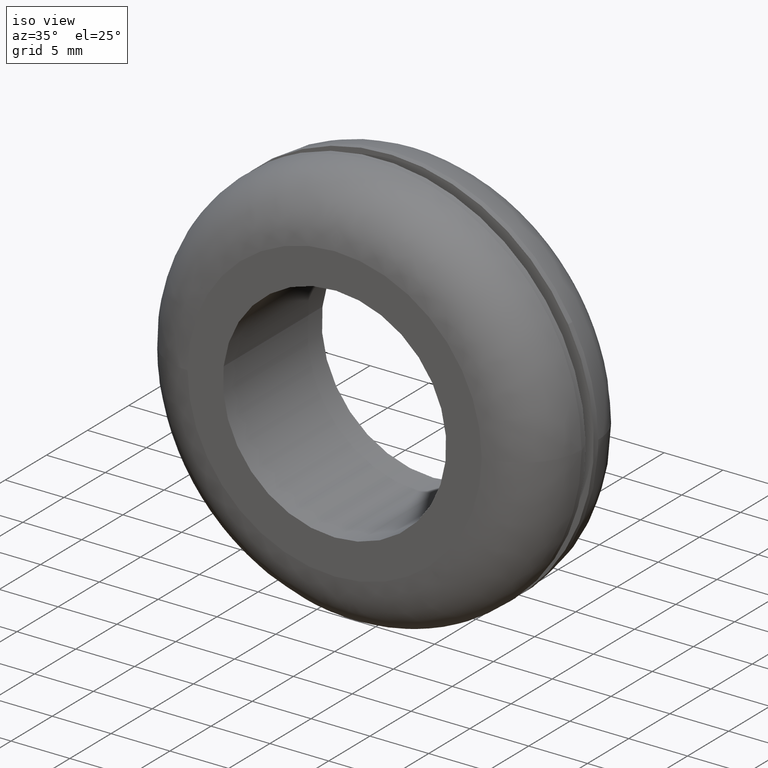
[diagram: clean part render]
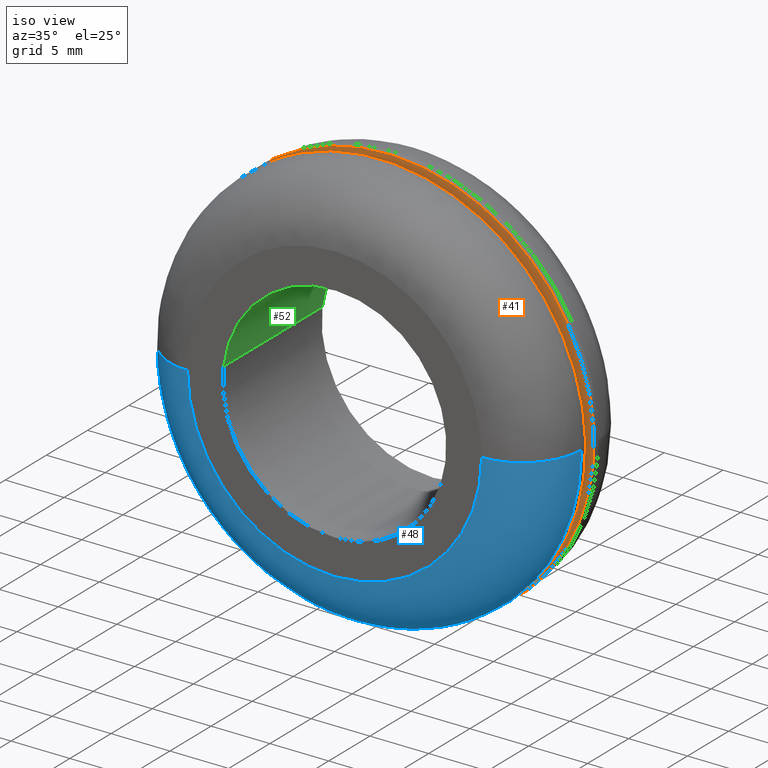
[diagram: same view with three faces highlighted in distinct colors, each labeled with its STEP entity id]
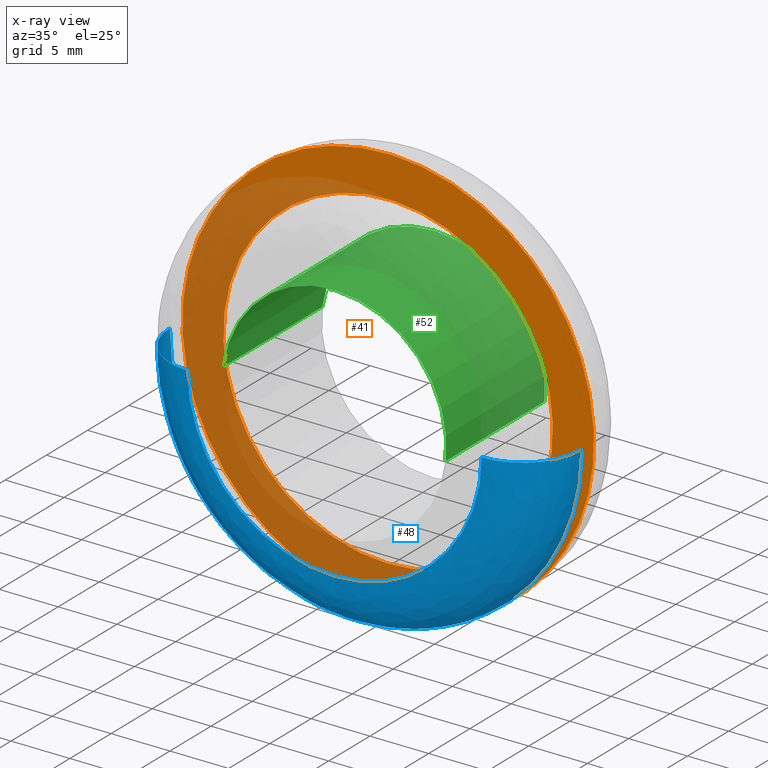
[diagram: x-ray of the same camera — body ghosted, the three highlighted faces saturated]
A machine part, iso view with three faces highlighted in distinct colors.
The next image is the same camera in x-ray (body ghosted, the three faces saturated) — at least one of them is partly hidden behind the body in this view.
Their STEP definitions:

[orange] entity #41 — the highlighted planar face has unit normal (0, 1, 0).
#41=ADVANCED_FACE('',(#68,#69),#67,.F.);
#67=PLANE('',#229);
#68=FACE_OUTER_BOUND('',#230,.T.);
#69=FACE_BOUND('',#231,.T.);
#226=CARTESIAN_POINT('',(-3.63730693493E+001,6.50000000000E+000,-2.27500034972E+001));
#227=DIRECTION('',(0.00000000000E+000,1.00000000000E+000,0.00000000000E+000));
#228=DIRECTION('',(0.00000000000E+000,0.00000000000E+000,1.00000000000E+000));
#229=AXIS2_PLACEMENT_3D('',#226,#227,#228);
#230=EDGE_LOOP('',(#394,#395,#396));
#231=EDGE_LOOP('',(#397,#398,#399));
#394=ORIENTED_EDGE('',*,*,#498,.T.);
#395=ORIENTED_EDGE('',*,*,#499,.T.);
#396=ORIENTED_EDGE('',*,*,#500,.T.);
#397=ORIENTED_EDGE('',*,*,#501,.F.);
#398=ORIENTED_EDGE('',*,*,#502,.F.);
#399=ORIENTED_EDGE('',*,*,#503,.F.);
#498=EDGE_CURVE('',#586,#587,#588,.T.);
#499=EDGE_CURVE('',#587,#594,#595,.T.);
#500=EDGE_CURVE('',#594,#586,#601,.T.);
#501=EDGE_CURVE('',#607,#608,#609,.T.);
#502=EDGE_CURVE('',#615,#607,#616,.T.);
#503=EDGE_CURVE('',#608,#615,#622,.T.);
#586=VERTEX_POINT('',#926);
#587=VERTEX_POINT('',#927);
#588=CIRCLE('',#931,1.75000011500E+001);
#594=VERTEX_POINT('',#932);
#595=CIRCLE('',#936,1.75000011500E+001);
#601=CIRCLE('',#940,1.75000011500E+001);
#607=VERTEX_POINT('',#941);
#608=VERTEX_POINT('',#942);
#609=CIRCLE('',#946,1.40000000000E+001);
#615=VERTEX_POINT('',#947);
#616=CIRCLE('',#951,1.40000000000E+001);
#622=CIRCLE('',#955,1.40000000000E+001);
#926=CARTESIAN_POINT('',(-5.98127582907E-014,6.50000000000E+000,-1.75000023001E+001));
#927=CARTESIAN_POINT('',(1.53110666170E+001,6.50000000000E+000,8.47474327068E+000));
#928=CARTESIAN_POINT('',(4.47224532962E-007,6.50000000000E+000,-1.15003596868E-006));
#929=DIRECTION('',(5.38317414406E-017,-1.00000000000E+000,4.06024395128E-016));
#930=DIRECTION('',(-2.55556887697E-008,-4.06024396503E-016,-1.00000000000E+000));
#931=AXIS2_PLACEMENT_3D('',#928,#929,#930);
#932=CARTESIAN_POINT('',(-1.53115626522E+001,6.50000000000E+000,-8.47384772078E+000));
#933=CARTESIAN_POINT('',(4.47224532962E-007,6.50000000000E+000,-1.15003596868E-006));
#934=DIRECTION('',(5.38317414406E-017,-1.00000000000E+000,4.06024395128E-016));
#935=DIRECTION('',(-2.55556887697E-008,-4.06024396503E-016,-1.00000000000E+000));
#936=AXIS2_PLACEMENT_3D('',#933,#934,#935);
#937=CARTESIAN_POINT('',(4.47224532962E-007,6.50000000000E+000,-1.15003596868E-006));
#938=DIRECTION('',(5.38317414406E-017,-1.00000000000E+000,4.06024395128E-016));
#939=DIRECTION('',(-2.55556887697E-008,-4.06024396503E-016,-1.00000000000E+000));
#940=AXIS2_PLACEMENT_3D('',#937,#938,#939);
#941=CARTESIAN_POINT('',(-1.39021333789E+001,6.50000000000E+000,1.65247920289E+000));
#942=CARTESIAN_POINT('',(-8.43769498715E-015,6.50000000000E+000,-1.40000000000E+001));
#943=CARTESIAN_POINT('',(4.71356287335E-012,6.50000000000E+000,1.03739239421E-011));
#944=DIRECTION('',(2.18657232574E-016,-1.00000000000E+000,7.64582107424E-016));
#945=DIRECTION('',(-3.36911054610E-013,-7.64582107424E-016,-1.00000000000E+000));
#946=AXIS2_PLACEMENT_3D('',#943,#944,#945);
#947=CARTESIAN_POINT('',(1.39018475546E+001,6.50000000000E+000,-1.65488204044E+000));
#948=CARTESIAN_POINT('',(4.71356287335E-012,6.50000000000E+000,1.03739239421E-011));
#949=DIRECTION('',(2.18657232574E-016,-1.00000000000E+000,7.64582107424E-016));
#950=DIRECTION('',(-3.36911054610E-013,-7.64582107424E-016,-1.00000000000E+000));
#951=AXIS2_PLACEMENT_3D('',#948,#949,#950);
#952=CARTESIAN_POINT('',(4.71356287335E-012,6.50000000000E+000,1.03739239421E-011));
#953=DIRECTION('',(2.18657232574E-016,-1.00000000000E+000,7.64582107424E-016));
#954=DIRECTION('',(-3.36911054610E-013,-7.64582107424E-016,-1.00000000000E+000));
#955=AXIS2_PLACEMENT_3D('',#952,#953,#954);

[blue] entity #48 — the highlighted face is a freeform B-spline surface patch.
#48=ADVANCED_FACE('',(#141),#140,.T.);
#140=( BOUNDED_SURFACE() B_SPLINE_SURFACE( 2,2,((#264,#265,#266,#267,#268),(#269,#270,#271,#272,#273),(#274,#275,#276,#277,#278),(#279,#280,#281,#282,#283),(#284,#285,#286,#287,#288)), .UNSPECIFIED.,.F.,.F.,.F.) B_SPLINE_SURFACE_WITH_KNOTS((3,2,3),(3,2,3),(0.00000000000E+000,5.00000000000E-001,1.00000000000E+000),(0.00000000000E+000,5.00000000000E-001,1.00000000000E+000), .UNSPECIFIED. ) GEOMETRIC_REPRESENTATION_ITEM() RATIONAL_B_SPLINE_SURFACE(((1.00000000000E+000,7.07106781015E-001,1.00000000000E+000,7.07106781015E-001,1.00000000000E+000),(7.07106781187E-001,4.99999999878E-001,7.07106781187E-001,4.99999999878E-001,7.07106781187E-001),(1.00000000000E+000,7.07106781015E-001,1.00000000000E+000,7.07106781015E-001,1.00000000000E+000),(7.07106781187E-001,4.99999999878E-001,7.07106781187E-001,4.99999999878E-001,7.07106781187E-001),(1.00000000000E+000,7.07106781015E-001,1.00000000000E+000,7.07106781015E-001,1.00000000000E+000))) REPRESENTATION_ITEM('') SURFACE() );
#141=FACE_OUTER_BOUND('',#289,.T.);
#264=CARTESIAN_POINT('',(-1.75000000000E+001,5.00000000000E+000,-2.23753985175E-013));
#265=CARTESIAN_POINT('',(-1.75000000000E+001,-2.43019099225E-009,-2.13188913351E-013));
#266=CARTESIAN_POINT('',(-1.24999999976E+001,0.00000000000E+000,-2.12576610179E-013));
#267=CARTESIAN_POINT('',(-7.49999999514E+000,2.43019350440E-009,-2.11964307007E-013));
#268=CARTESIAN_POINT('',(-7.50000000000E+000,5.00000000486E+000,-2.22529378832E-013));
#269=CARTESIAN_POINT('',(-1.75000000000E+001,5.00000000000E+000,-1.75000000000E+001));
#270=CARTESIAN_POINT('',(-1.75000000000E+001,-2.43022774855E-009,-1.75000000000E+001));
#271=CARTESIAN_POINT('',(-1.24999999976E+001,-2.66632960471E-014,-1.24999999976E+001));
#272=CARTESIAN_POINT('',(-7.49999999514E+000,2.43017728133E-009,-7.49999999514E+000));
#273=CARTESIAN_POINT('',(-7.50000000000E+000,5.00000000486E+000,-7.50000000000E+000));
#274=CARTESIAN_POINT('',(3.61623521911E-012,5.00000000000E+000,-1.75000000000E+001));
#275=CARTESIAN_POINT('',(3.46509697276E-012,-2.43075685357E-009,-1.75000000000E+001));
#276=CARTESIAN_POINT('',(3.46479083136E-012,-4.04121180964E-013,-1.24999999976E+001));
#277=CARTESIAN_POINT('',(3.46448468996E-012,2.42995108212E-009,-7.49999999514E+000));
#278=CARTESIAN_POINT('',(3.61562293630E-012,5.00000000486E+000,-7.50000000000E+000));
#279=CARTESIAN_POINT('',(1.75000000000E+001,5.00000000000E+000,-1.75000000000E+001));
#280=CARTESIAN_POINT('',(1.75000000000E+001,-2.43128582919E-009,-1.75000000000E+001));
#281=CARTESIAN_POINT('',(1.24999999976E+001,-7.81931645729E-013,-1.24999999976E+001));
#282=CARTESIAN_POINT('',(7.49999999515E+000,2.42972431034E-009,-7.49999999514E+000));
#283=CARTESIAN_POINT('',(7.50000000001E+000,5.00000000486E+000,-7.50000000000E+000));
#284=CARTESIAN_POINT('',(1.75000000000E+001,5.00000000000E+000,-2.21610994835E-013));
#285=CARTESIAN_POINT('',(1.75000000000E+001,-2.43124923457E-009,-2.11045923011E-013));
#286=CARTESIAN_POINT('',(1.24999999976E+001,-7.55839835165E-013,-2.11045902794E-013));
#287=CARTESIAN_POINT('',(7.49999999515E+000,2.42974006170E-009,-2.11045882576E-013));
#288=CARTESIAN_POINT('',(7.50000000001E+000,5.00000000486E+000,-2.21610954400E-013));
#289=EDGE_LOOP('',(#437,#438,#439,#440,#441,#442,#443));
#437=ORIENTED_EDGE('',*,*,#511,.F.);
#438=ORIENTED_EDGE('',*,*,#528,.F.);
#439=ORIENTED_EDGE('',*,*,#525,.T.);
#440=ORIENTED_EDGE('',*,*,#524,.T.);
#441=ORIENTED_EDGE('',*,*,#522,.T.);
#442=ORIENTED_EDGE('',*,*,#521,.T.);
#443=ORIENTED_EDGE('',*,*,#529,.T.);
#511=EDGE_CURVE('',#671,#678,#679,.T.);
#521=EDGE_CURVE('',#745,#738,#746,.T.);
#522=EDGE_CURVE('',#752,#745,#753,.T.);
#524=EDGE_CURVE('',#765,#752,#766,.T.);
#525=EDGE_CURVE('',#772,#765,#773,.T.);
#528=EDGE_CURVE('',#772,#671,#792,.T.);
#529=EDGE_CURVE('',#738,#678,#798,.T.);
#671=VERTEX_POINT('',#987);
#678=VERTEX_POINT('',#992);
#679=CIRCLE('',#996,1.25000000001E+001);
#738=VERTEX_POINT('',#1028);
#745=VERTEX_POINT('',#1033);
#746=CIRCLE('',#1037,1.75000000000E+001);
#752=VERTEX_POINT('',#1038);
#753=CIRCLE('',#1042,1.75000000000E+001);
#765=VERTEX_POINT('',#1045);
#766=CIRCLE('',#1049,1.75000000000E+001);
#772=VERTEX_POINT('',#1050);
#773=CIRCLE('',#1054,1.75000000000E+001);
#792=(BOUNDED_CURVE() B_SPLINE_CURVE(2,(#1064,#1065,#1066),.UNSPECIFIED.,.F.,.F.) B_SPLINE_CURVE_WITH_KNOTS((3,3),(0.00000000000E+000,5.00000000000E-001),.UNSPECIFIED.) CURVE() GEOMETRIC_REPRESENTATION_ITEM() RATIONAL_B_SPLINE_CURVE((1.00000000000E+000,7.07106781015E-001,1.00000000000E+000)) REPRESENTATION_ITEM('') );
#798=(BOUNDED_CURVE() B_SPLINE_CURVE(3,(#1067,#1068,#1069,#1070,#1071),.UNSPECIFIED.,.F.,.F.) B_SPLINE_CURVE_WITH_KNOTS((4,1,4),(0.00000000000E+000,2.50000046000E-001,5.00000079937E-001),.UNSPECIFIED.) CURVE() GEOMETRIC_REPRESENTATION_ITEM() RATIONAL_B_SPLINE_CURVE((1.00000000000E+000,1.00000000000E+000,1.00000000000E+000,1.00000000000E+000,1.00000000000E+000)) REPRESENTATION_ITEM('') );
#987=CARTESIAN_POINT('',(-1.25000000001E+001,-3.60684523020E-016,-2.12694981762E-013));
#992=CARTESIAN_POINT('',(1.24999999327E+001,-3.60923622817E-016,-1.29728360748E-003));
#993=CARTESIAN_POINT('',(-1.26263444145E-011,-3.60684523008E-016,6.66604549338E-011));
#994=DIRECTION('',(-5.93530804006E-032,-1.00000000000E+000,1.84308038158E-016));
#995=DIRECTION('',(1.00961017325E-012,1.84308038158E-016,1.00000000000E+000));
#996=AXIS2_PLACEMENT_3D('',#993,#994,#995);
#1028=CARTESIAN_POINT('',(1.75000000000E+001,5.00000000003E+000,2.30736714655E-005));
#1033=CARTESIAN_POINT('',(1.74986182736E+001,4.99999999997E+000,-2.19905697968E-001));
#1034=CARTESIAN_POINT('',(1.06581410364E-014,4.99999999995E+000,1.95399252334E-014));
#1035=DIRECTION('',(4.73257067388E-012,-1.00000000000E+000,2.80662169181E-010));
#1036=DIRECTION('',(-9.99921044204E-001,-1.20538499816E-012,1.25660398839E-002));
#1037=AXIS2_PLACEMENT_3D('',#1034,#1035,#1036);
#1038=CARTESIAN_POINT('',(9.49807078876E+000,4.99999999999E+000,-1.46981853061E+001));
#1039=CARTESIAN_POINT('',(-1.30668809106E-011,4.99999999997E+000,8.35065350202E-012));
#1040=DIRECTION('',(5.38332154837E-014,-1.00000000000E+000,-1.78738785599E-012));
#1041=DIRECTION('',(-5.42728706712E-001,-1.53045829977E-012,8.39908060987E-001));
#1042=AXIS2_PLACEMENT_3D('',#1039,#1040,#1041);
#1045=CARTESIAN_POINT('',(-1.35034316115E+001,5.00000000000E+000,-1.11313671538E+001));
#1046=CARTESIAN_POINT('',(-1.30668809106E-011,4.99999999997E+000,8.35065350202E-012));
#1047=DIRECTION('',(5.38332154837E-014,-1.00000000000E+000,-1.78738785599E-012));
#1048=DIRECTION('',(-5.42728706712E-001,-1.53045829977E-012,8.39908060987E-001));
#1049=AXIS2_PLACEMENT_3D('',#1046,#1047,#1048);
#1050=CARTESIAN_POINT('',(-1.75000000000E+001,5.00000000003E+000,-2.23831812019E-013));
#1051=CARTESIAN_POINT('',(-6.02184968557E-013,4.99999999977E+000,1.77635683940E-015));
#1052=DIRECTION('',(-1.48615580498E-011,-1.00000000000E+000,-5.00986693622E-011));
#1053=DIRECTION('',(9.97565673840E-001,-1.13318370560E-011,-6.97332515755E-002));
#1054=AXIS2_PLACEMENT_3D('',#1051,#1052,#1053);
#1064=CARTESIAN_POINT('',(-1.75000000000E+001,5.00000000000E+000,-2.23753985175E-013));
#1065=CARTESIAN_POINT('',(-1.75000000000E+001,-2.43019099225E-009,-2.13188913351E-013));
#1066=CARTESIAN_POINT('',(-1.24999999976E+001,0.00000000000E+000,-2.12576610179E-013));
#1067=CARTESIAN_POINT('',(1.75000000000E+001,5.00000000000E+000,-2.18491891246E-013));
#1068=CARTESIAN_POINT('',(1.75092210951E+001,3.70943789612E+000,-2.15912964819E-013));
#1069=CARTESIAN_POINT('',(1.64211759624E+001,1.07882308398E+000,-2.10900124590E-013));
#1070=CARTESIAN_POINT('',(1.37905609069E+001,-9.22138485387E-003,-2.09307299433E-013));
#1071=CARTESIAN_POINT('',(1.24999988671E+001,-6.27197189396E-013,-2.09610106989E-013));

[green] entity #52 — the highlighted cylindrical surface (partial cylindrical patch) has radius 9.5 mm, axis along (0, 1, 0).
#52=ADVANCED_FACE('',(#181),#180,.F.);
#180=CYLINDRICAL_SURFACE('',#371,9.50000000000E+000);
#181=FACE_OUTER_BOUND('',#372,.T.);
#368=CARTESIAN_POINT('',(-3.05309655699E-013,1.20000000000E+001,-2.65371185567E-012));
#369=DIRECTION('',(1.01856202592E-015,1.00000000000E+000,6.98494135263E-015));
#370=DIRECTION('',(-9.93009615725E-001,1.86984930463E-016,1.18033482869E-001));
#371=AXIS2_PLACEMENT_3D('',#368,#369,#370);
#372=EDGE_LOOP('',(#467,#468,#469,#470));
#467=ORIENTED_EDGE('',*,*,#514,.T.);
#468=ORIENTED_EDGE('',*,*,#540,.T.);
#469=ORIENTED_EDGE('',*,*,#508,.F.);
#470=ORIENTED_EDGE('',*,*,#541,.F.);
#508=EDGE_CURVE('',#650,#657,#658,.T.);
#514=EDGE_CURVE('',#699,#691,#700,.T.);
#540=EDGE_CURVE('',#691,#657,#872,.T.);
#541=EDGE_CURVE('',#699,#650,#878,.T.);
#650=VERTEX_POINT('',#972);
#657=VERTEX_POINT('',#977);
#658=CIRCLE('',#981,9.49999999998E+000);
#691=VERTEX_POINT('',#1001);
#699=VERTEX_POINT('',#1007);
#700=CIRCLE('',#1011,9.49999999998E+000);
#872=(BOUNDED_CURVE() B_SPLINE_CURVE(1,(#1122,#1123),.UNSPECIFIED.,.F.,.F.) B_SPLINE_CURVE_WITH_KNOTS((2,2),(8.33333343261E-002,9.16666667006E-001),.UNSPECIFIED.) CURVE() GEOMETRIC_REPRESENTATION_ITEM() RATIONAL_B_SPLINE_CURVE((1.00000000000E+000,1.00000000000E+000)) REPRESENTATION_ITEM('') );
#878=(BOUNDED_CURVE() B_SPLINE_CURVE(1,(#1124,#1125),.UNSPECIFIED.,.F.,.F.) B_SPLINE_CURVE_WITH_KNOTS((2,2),(8.33333333333E-002,9.16666666667E-001),.UNSPECIFIED.) CURVE() GEOMETRIC_REPRESENTATION_ITEM() RATIONAL_B_SPLINE_CURVE((7.50000000000E-001,7.50000000000E-001)) REPRESENTATION_ITEM('') );
#972=CARTESIAN_POINT('',(9.43339740405E+000,1.20000000000E+001,-1.12294853716E+000));
#977=CARTESIAN_POINT('',(-9.43359175943E+000,1.20000000000E+001,1.12131463734E+000));
#978=CARTESIAN_POINT('',(7.51754214434E-012,1.20000000000E+001,1.65361058180E-011));
#979=DIRECTION('',(4.58784378545E-016,-1.00000000000E+000,2.27557584019E-015));
#980=DIRECTION('',(-7.90881249380E-013,-2.27557584019E-015,-1.00000000000E+000));
#981=AXIS2_PLACEMENT_3D('',#978,#979,#980);
#1001=CARTESIAN_POINT('',(-9.43359175943E+000,3.40285494038E-016,1.12131463734E+000));
#1007=CARTESIAN_POINT('',(9.43339740405E+000,-6.99109550517E-016,-1.12294853716E+000));
#1008=CARTESIAN_POINT('',(7.33635374672E-012,-1.80937037849E-016,1.61390900644E-011));
#1009=DIRECTION('',(-2.73272731762E-016,-1.00000000000E+000,-1.83420495022E-015));
#1010=DIRECTION('',(-7.72104602476E-013,1.83420495022E-015,-1.00000000000E+000));
#1011=AXIS2_PLACEMENT_3D('',#1008,#1009,#1010);
#1122=CARTESIAN_POINT('',(-9.43359134939E+000,1.42954557081E-008,1.12131808726E+000));
#1123=CARTESIAN_POINT('',(-9.43359134939E+000,1.20000000049E+001,1.12131808726E+000));
#1124=CARTESIAN_POINT('',(9.43359134939E+000,-1.33226762955E-015,-1.12131808726E+000));
#1125=CARTESIAN_POINT('',(9.43359134939E+000,1.20000000000E+001,-1.12131808726E+000));